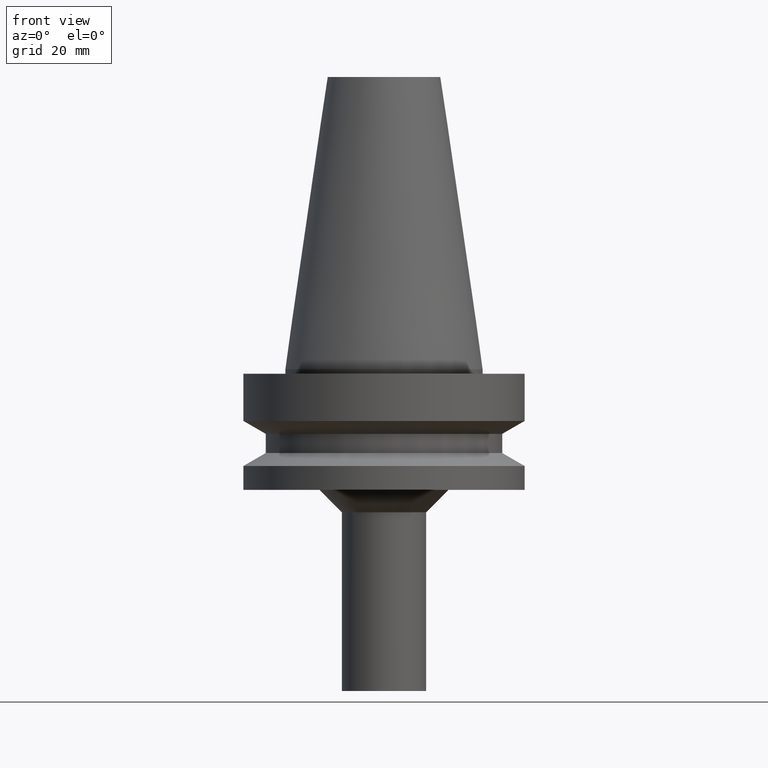
[diagram: clean part render]
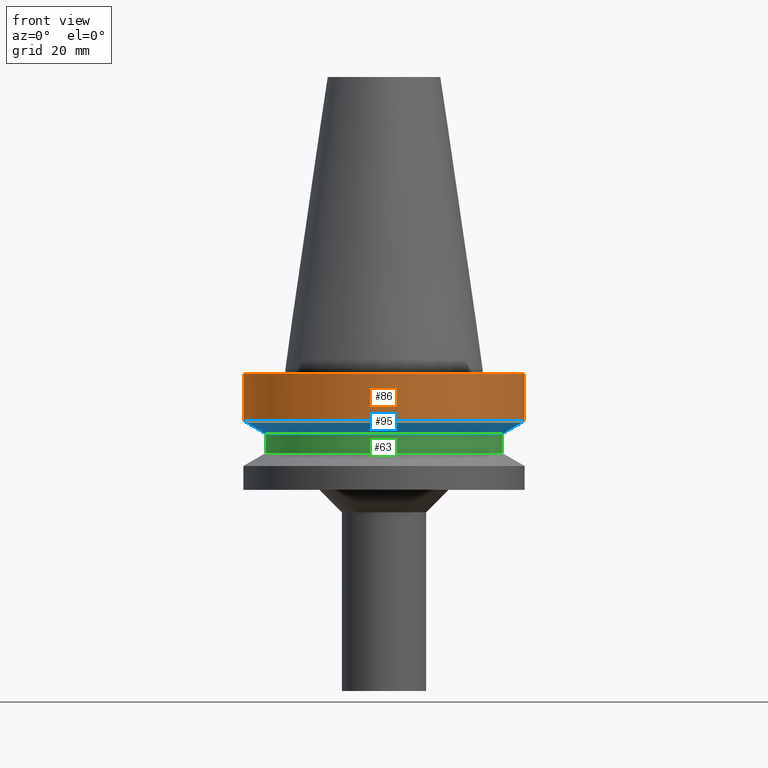
[diagram: same view with three faces highlighted in distinct colors, each labeled with its STEP entity id]
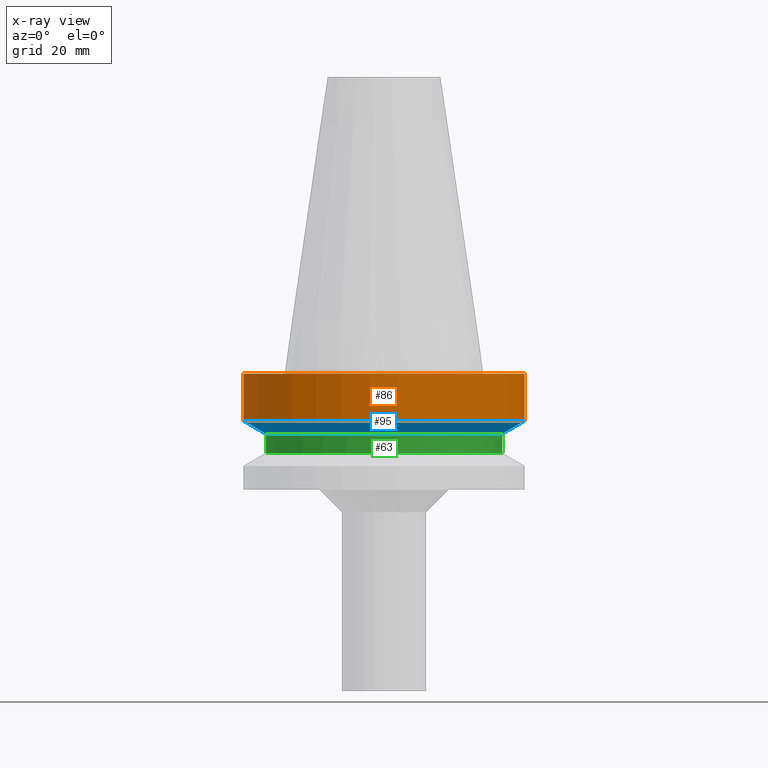
[diagram: x-ray of the same camera — body ghosted, the three highlighted faces saturated]
A machine part, front view with three faces highlighted in distinct colors.
The next image is the same camera in x-ray (body ghosted, the three faces saturated) — at least one of them is partly hidden behind the body in this view.
Their STEP definitions:

[orange] entity #86 — the highlighted cylindrical surface (bore or boss wall) has radius 31.5 mm, axis along (0, -0, -1).
#69=EDGE_CURVE('Unnamed[1]',#161,#161,#162,.T.);
#86=ADVANCED_FACE('Unnamed[1]',(#185,#186),#187,.T.);
#106=EDGE_CURVE('Unnamed[1]',#218,#218,#219,.T.);
#161=VERTEX_POINT('',#278);
#162=CIRCLE('',#279,31.5000000000004);
#185=FACE_BOUND('',#307,.T.);
#186=FACE_BOUND('',#308,.T.);
#187=CYLINDRICAL_SURFACE('',#309,31.5);
#218=VERTEX_POINT('',#348);
#219=CIRCLE('',#349,31.4999999999997);
#278=CARTESIAN_POINT('',(2.56805813340452E-015,31.5000000000004,-11.5655056526664));
#279=AXIS2_PLACEMENT_3D('',#399,#400,#401);
#307=EDGE_LOOP('',(#424));
#308=EDGE_LOOP('',(#425));
#309=AXIS2_PLACEMENT_3D('',#426,#427,#428);
#348=CARTESIAN_POINT('',(2.22044604924993E-016,31.4999999999997,-0.999999999999825));
#349=AXIS2_PLACEMENT_3D('',#462,#463,#464);
#399=CARTESIAN_POINT('',(2.56805813340451E-015,2.35829242678712E-014,-11.5655056526663));
#400=DIRECTION('',(2.22044604925031E-016,-6.87296523471693E-016,-1.0));
#401=DIRECTION('',(1.73640130667518E-031,1.0,-6.87296523471693E-016));
#424=ORIENTED_EDGE('',*,*,#69,.F.);
#425=ORIENTED_EDGE('',*,*,#106,.T.);
#426=CARTESIAN_POINT('',(1.39505136916475E-015,2.72137419197704E-014,-6.28275282633307));
#427=DIRECTION('',(2.22044604925031E-016,-6.87296523471693E-016,-1.0));
#428=DIRECTION('',(1.73640130667518E-031,1.0,-6.87296523471693E-016));
#462=CARTESIAN_POINT('',(2.22044604924987E-016,3.08445595716695E-014,-0.999999999999801));
#463=DIRECTION('',(2.22044604925031E-016,-6.87296523471693E-016,-1.0));
#464=DIRECTION('',(1.73640130667518E-031,1.0,-6.87296523471693E-016));

[blue] entity #95 — the highlighted conical surface has half-angle 60 deg.
#65=EDGE_CURVE('Unnamed[1]',#155,#155,#156,.T.);
#69=EDGE_CURVE('Unnamed[1]',#161,#161,#162,.T.);
#95=ADVANCED_FACE('Unnamed[1]',(#199,#200),#201,.T.);
#155=VERTEX_POINT('',#270);
#156=CIRCLE('',#271,26.4999999999994);
#161=VERTEX_POINT('',#278);
#162=CIRCLE('',#279,31.5000000000004);
#199=FACE_BOUND('',#325,.T.);
#200=FACE_BOUND('',#326,.T.);
#201=CONICAL_SURFACE('',#327,28.9999999999999,1.04719755119657);
#270=CARTESIAN_POINT('',(3.20904569553253E-015,26.4999999999995,-14.4522569986152));
#271=AXIS2_PLACEMENT_3D('',#393,#394,#395);
#278=CARTESIAN_POINT('',(2.56805813340452E-015,31.5000000000004,-11.5655056526664));
#279=AXIS2_PLACEMENT_3D('',#399,#400,#401);
#325=EDGE_LOOP('',(#439));
#326=EDGE_LOOP('',(#440));
#327=AXIS2_PLACEMENT_3D('',#441,#442,#443);
#393=CARTESIAN_POINT('',(3.20904569553252E-015,2.15988701036734E-014,-14.4522569986152));
#394=DIRECTION('',(2.22044604925031E-016,-6.87296523471693E-016,-1.0));
#395=DIRECTION('',(1.73640130667518E-031,1.0,-6.87296523471693E-016));
#399=CARTESIAN_POINT('',(2.56805813340451E-015,2.35829242678712E-014,-11.5655056526663));
#400=DIRECTION('',(2.22044604925031E-016,-6.87296523471693E-016,-1.0));
#401=DIRECTION('',(1.73640130667518E-031,1.0,-6.87296523471693E-016));
#439=ORIENTED_EDGE('',*,*,#65,.F.);
#440=ORIENTED_EDGE('',*,*,#69,.T.);
#441=CARTESIAN_POINT('',(2.88855191446852E-015,2.25908971857723E-014,-13.0088813256408));
#442=DIRECTION('',(-2.22044604925031E-016,6.87296523471693E-016,1.0));
#443=DIRECTION('',(1.73640130667518E-031,1.0,-6.87296523471693E-016));

[green] entity #63 — the highlighted cylindrical surface (bore or boss wall) has radius 26.5 mm, axis along (0, -0, -1).
#56=EDGE_CURVE('Unnamed[1]',#141,#141,#142,.T.);
#63=ADVANCED_FACE('Unnamed[1]',(#151,#152),#153,.T.);
#65=EDGE_CURVE('Unnamed[1]',#155,#155,#156,.T.);
#141=VERTEX_POINT('',#252);
#142=CIRCLE('',#253,26.5);
#151=FACE_BOUND('',#265,.T.);
#152=FACE_BOUND('',#266,.T.);
#153=CYLINDRICAL_SURFACE('',#267,26.4999999999997);
#155=VERTEX_POINT('',#270);
#156=CIRCLE('',#271,26.4999999999994);
#252=CARTESIAN_POINT('',(4.16283518797867E-015,26.5,-18.7477430013855));
#253=AXIS2_PLACEMENT_3D('',#378,#379,#380);
#265=EDGE_LOOP('',(#388));
#266=EDGE_LOOP('',(#389));
#267=AXIS2_PLACEMENT_3D('',#390,#391,#392);
#270=CARTESIAN_POINT('',(3.20904569553253E-015,26.4999999999995,-14.4522569986152));
#271=AXIS2_PLACEMENT_3D('',#393,#394,#395);
#378=CARTESIAN_POINT('',(4.16283518797866E-015,1.8646597507348E-014,-18.7477430013855));
#379=DIRECTION('',(2.22044604925031E-016,-6.87296523471693E-016,-1.0));
#380=DIRECTION('',(1.73640130667518E-031,1.0,-6.87296523471693E-016));
#388=ORIENTED_EDGE('',*,*,#56,.F.);
#389=ORIENTED_EDGE('',*,*,#65,.T.);
#390=CARTESIAN_POINT('',(3.68594044175559E-015,2.01227338055107E-014,-16.6000000000003));
#391=DIRECTION('',(2.22044604925031E-016,-6.87296523471693E-016,-1.0));
#392=DIRECTION('',(1.73640130667518E-031,1.0,-6.87296523471693E-016));
#393=CARTESIAN_POINT('',(3.20904569553252E-015,2.15988701036734E-014,-14.4522569986152));
#394=DIRECTION('',(2.22044604925031E-016,-6.87296523471693E-016,-1.0));
#395=DIRECTION('',(1.73640130667518E-031,1.0,-6.87296523471693E-016));